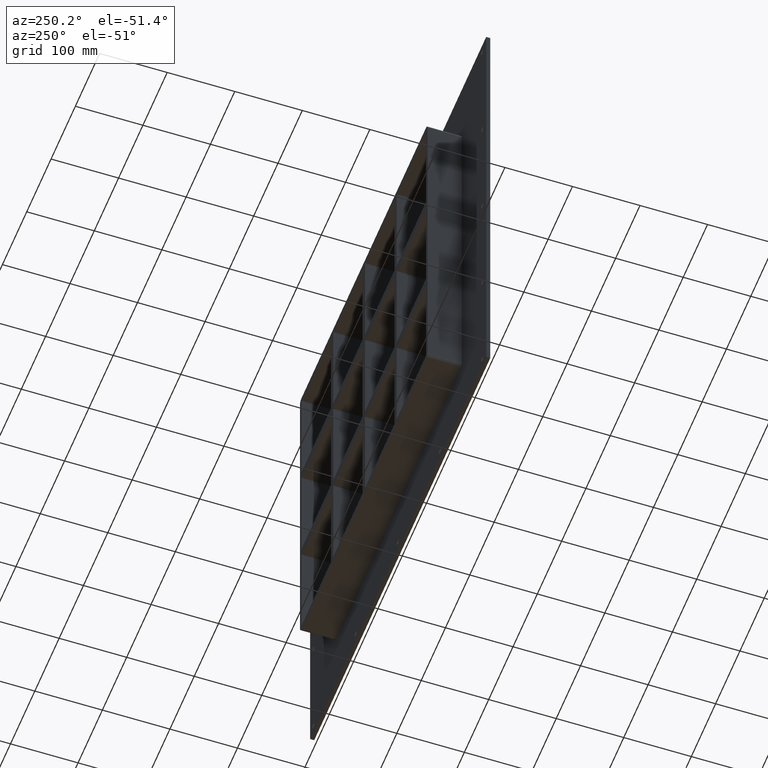
[diagram: clean part render]
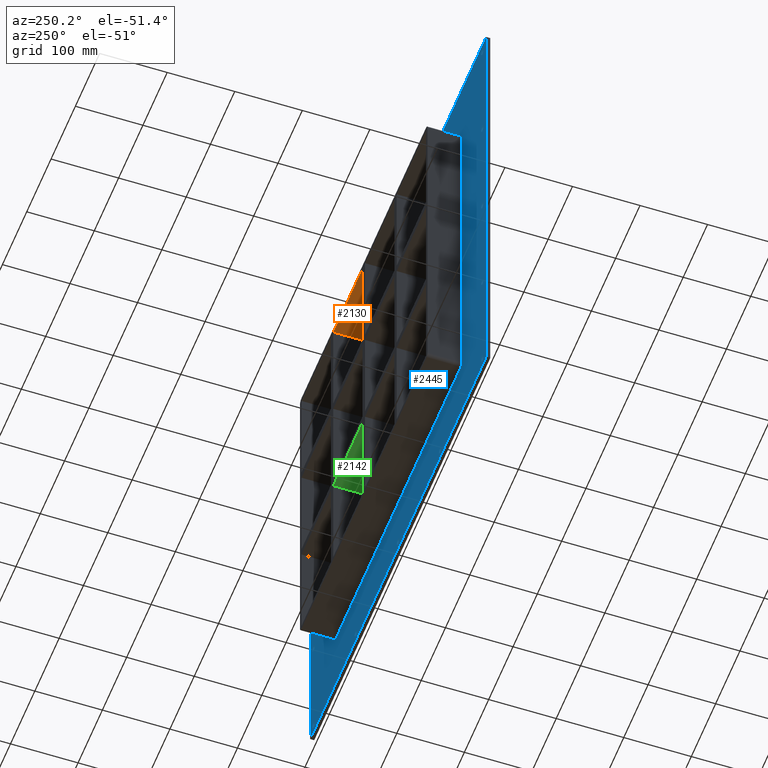
[diagram: same view with three faces highlighted in distinct colors, each labeled with its STEP entity id]
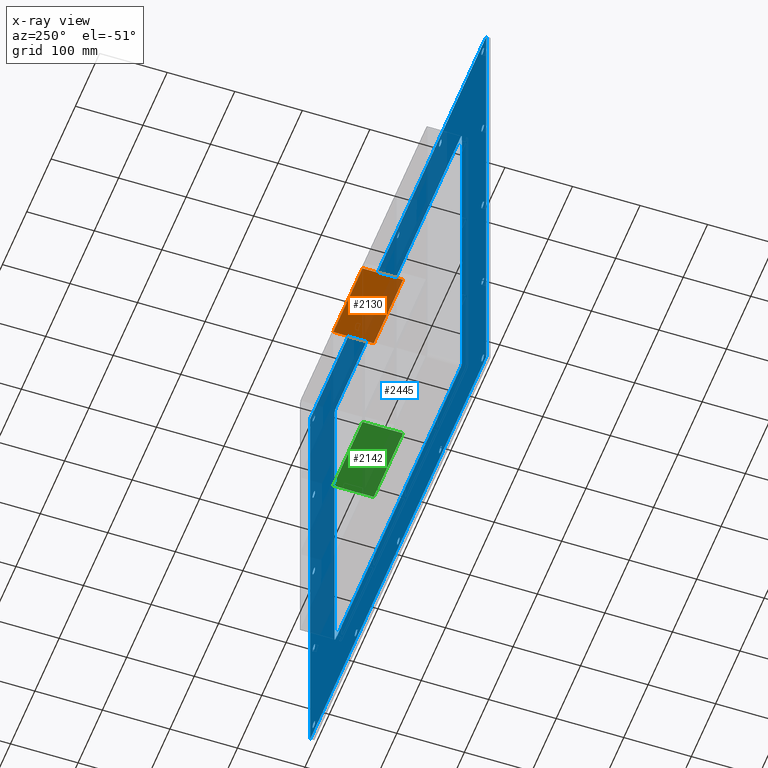
[diagram: x-ray of the same camera — body ghosted, the three highlighted faces saturated]
A machine part, auxiliary view with three faces highlighted in distinct colors.
The next image is the same camera in x-ray (body ghosted, the three faces saturated) — at least one of them is partly hidden behind the body in this view.
Their STEP definitions:

[orange] entity #2130 — the highlighted planar face has unit normal (0, 0, 1).
#935=CARTESIAN_POINT('',(125.49999999999862,-3.0,251.25));
#936=VERTEX_POINT('',#935);
#943=CARTESIAN_POINT('',(125.49999999999862,57.0,251.25));
#944=VERTEX_POINT('',#943);
#945=CARTESIAN_POINT('',(125.49999999999862,57.000000000000007,251.25));
#946=DIRECTION('',(0.0,-1.0,0.0));
#947=VECTOR('',#946,60.000000000000007);
#948=LINE('',#945,#947);
#949=EDGE_CURVE('',#944,#936,#948,.T.);
#1028=CARTESIAN_POINT('',(5.000000000007283,57.0,251.25));
#1029=VERTEX_POINT('',#1028);
#1036=CARTESIAN_POINT('',(5.000000000007283,-3.0,251.25));
#1037=VERTEX_POINT('',#1036);
#1038=CARTESIAN_POINT('',(5.000000000007283,-3.0,251.25));
#1039=DIRECTION('',(0.0,1.0,0.0));
#1040=VECTOR('',#1039,60.000000000000007);
#1041=LINE('',#1038,#1040);
#1042=EDGE_CURVE('',#1037,#1029,#1041,.T.);
#1251=CARTESIAN_POINT('',(125.49999999999864,57.0,251.25));
#1252=DIRECTION('',(-1.0,0.0,0.0));
#1253=VECTOR('',#1252,120.49999999999136);
#1254=LINE('',#1251,#1253);
#1255=EDGE_CURVE('',#944,#1029,#1254,.T.);
#1901=CARTESIAN_POINT('',(5.000000000007276,-3.0,251.25));
#1902=DIRECTION('',(1.0,0.0,0.0));
#1903=VECTOR('',#1902,120.49999999999136);
#1904=LINE('',#1901,#1903);
#1905=EDGE_CURVE('',#1037,#936,#1904,.T.);
#2119=CARTESIAN_POINT('',(-256.0,0.0,251.25));
#2120=DIRECTION('',(0.0,0.0,1.0));
#2121=DIRECTION('',(1.0,0.0,0.0));
#2122=AXIS2_PLACEMENT_3D('',#2119,#2120,#2121);
#2123=PLANE('',#2122);
#2124=ORIENTED_EDGE('',*,*,#949,.T.);
#2125=ORIENTED_EDGE('',*,*,#1905,.F.);
#2126=ORIENTED_EDGE('',*,*,#1042,.T.);
#2127=ORIENTED_EDGE('',*,*,#1255,.F.);
#2128=EDGE_LOOP('',(#2124,#2125,#2126,#2127));
#2129=FACE_OUTER_BOUND('',#2128,.T.);
#2130=ADVANCED_FACE('',(#2129),#2123,.F.);

[blue] entity #2445 — the highlighted planar face has unit normal (0, 1, 0).
#73=CARTESIAN_POINT('',(-352.0,5.999999999999943,-342.24999999999994));
#74=VERTEX_POINT('',#73);
#75=CARTESIAN_POINT('',(-347.0,5.999999999999943,-342.24999999999994));
#76=DIRECTION('',(0.0,-1.0,0.0));
#77=DIRECTION('',(1.0,0.0,0.0));
#78=AXIS2_PLACEMENT_3D('',#75,#76,#77);
#79=CIRCLE('',#78,5.0);
#80=EDGE_CURVE('',#74,#74,#79,.T.);
#101=CARTESIAN_POINT('',(342.0,5.999999999999943,-171.14999999999995));
#102=VERTEX_POINT('',#101);
#103=CARTESIAN_POINT('',(347.0,5.999999999999943,-171.14999999999995));
#104=DIRECTION('',(0.0,-1.0,0.0));
#105=DIRECTION('',(1.0,0.0,0.0));
#106=AXIS2_PLACEMENT_3D('',#103,#104,#105);
#107=CIRCLE('',#106,5.0);
#108=EDGE_CURVE('',#102,#102,#107,.T.);
#129=CARTESIAN_POINT('',(-352.0,5.999999999999943,-171.14999999999995));
#130=VERTEX_POINT('',#129);
#131=CARTESIAN_POINT('',(-347.0,5.999999999999943,-171.14999999999995));
#132=DIRECTION('',(0.0,-1.0,0.0));
#133=DIRECTION('',(1.0,0.0,0.0));
#134=AXIS2_PLACEMENT_3D('',#131,#132,#133);
#135=CIRCLE('',#134,5.0);
#136=EDGE_CURVE('',#130,#130,#135,.T.);
#157=CARTESIAN_POINT('',(342.0,5.999999999999943,-0.049999999999955));
#158=VERTEX_POINT('',#157);
#159=CARTESIAN_POINT('',(347.0,5.999999999999943,-0.049999999999955));
#160=DIRECTION('',(0.0,-1.0,0.0));
#161=DIRECTION('',(1.0,0.0,0.0));
#162=AXIS2_PLACEMENT_3D('',#159,#160,#161);
#163=CIRCLE('',#162,5.0);
#164=EDGE_CURVE('',#158,#158,#163,.T.);
#185=CARTESIAN_POINT('',(-352.0,5.999999999999943,-0.049999999999955));
#186=VERTEX_POINT('',#185);
#187=CARTESIAN_POINT('',(-347.0,5.999999999999943,-0.049999999999955));
#188=DIRECTION('',(0.0,-1.0,0.0));
#189=DIRECTION('',(1.0,0.0,0.0));
#190=AXIS2_PLACEMENT_3D('',#187,#188,#189);
#191=CIRCLE('',#190,5.0);
#192=EDGE_CURVE('',#186,#186,#191,.T.);
#213=CARTESIAN_POINT('',(342.0,5.999999999999943,171.05000000000004));
#214=VERTEX_POINT('',#213);
#215=CARTESIAN_POINT('',(347.0,5.999999999999943,171.05000000000004));
#216=DIRECTION('',(0.0,-1.0,0.0));
#217=DIRECTION('',(1.0,0.0,0.0));
#218=AXIS2_PLACEMENT_3D('',#215,#216,#217);
#219=CIRCLE('',#218,5.0);
#220=EDGE_CURVE('',#214,#214,#219,.T.);
#241=CARTESIAN_POINT('',(-352.0,5.999999999999943,171.05000000000004));
#242=VERTEX_POINT('',#241);
#243=CARTESIAN_POINT('',(-347.0,5.999999999999943,171.05000000000004));
#244=DIRECTION('',(0.0,-1.0,0.0));
#245=DIRECTION('',(1.0,0.0,0.0));
#246=AXIS2_PLACEMENT_3D('',#243,#244,#245);
#247=CIRCLE('',#246,5.0);
#248=EDGE_CURVE('',#242,#242,#247,.T.);
#269=CARTESIAN_POINT('',(-178.5,5.999999999999943,342.15000000000003));
#270=VERTEX_POINT('',#269);
#271=CARTESIAN_POINT('',(-173.5,5.999999999999943,342.15000000000003));
#272=DIRECTION('',(0.0,-1.0,0.0));
#273=DIRECTION('',(1.0,0.0,0.0));
#274=AXIS2_PLACEMENT_3D('',#271,#272,#273);
#275=CIRCLE('',#274,5.0);
#276=EDGE_CURVE('',#270,#270,#275,.T.);
#297=CARTESIAN_POINT('',(-178.5,5.999999999999943,-342.24999999999994));
#298=VERTEX_POINT('',#297);
#299=CARTESIAN_POINT('',(-173.5,5.999999999999943,-342.24999999999994));
#300=DIRECTION('',(0.0,-1.0,0.0));
#301=DIRECTION('',(1.0,0.0,0.0));
#302=AXIS2_PLACEMENT_3D('',#299,#300,#301);
#303=CIRCLE('',#302,5.0);
#304=EDGE_CURVE('',#298,#298,#303,.T.);
#325=CARTESIAN_POINT('',(-5.0,5.999999999999943,342.15000000000003));
#326=VERTEX_POINT('',#325);
#327=CARTESIAN_POINT('',(0.0,5.999999999999943,342.15000000000003));
#328=DIRECTION('',(0.0,-1.0,0.0));
#329=DIRECTION('',(1.0,0.0,0.0));
#330=AXIS2_PLACEMENT_3D('',#327,#328,#329);
#331=CIRCLE('',#330,5.0);
#332=EDGE_CURVE('',#326,#326,#331,.T.);
#353=CARTESIAN_POINT('',(-5.0,5.999999999999943,-342.24999999999994));
#354=VERTEX_POINT('',#353);
#355=CARTESIAN_POINT('',(0.0,5.999999999999943,-342.24999999999994));
#356=DIRECTION('',(0.0,-1.0,0.0));
#357=DIRECTION('',(1.0,0.0,0.0));
#358=AXIS2_PLACEMENT_3D('',#355,#356,#357);
#359=CIRCLE('',#358,5.0);
#360=EDGE_CURVE('',#354,#354,#359,.T.);
#381=CARTESIAN_POINT('',(168.5,5.999999999999943,342.15000000000003));
#382=VERTEX_POINT('',#381);
#383=CARTESIAN_POINT('',(173.5,5.999999999999943,342.15000000000003));
#384=DIRECTION('',(0.0,-1.0,0.0));
#385=DIRECTION('',(1.0,0.0,0.0));
#386=AXIS2_PLACEMENT_3D('',#383,#384,#385);
#387=CIRCLE('',#386,5.0);
#388=EDGE_CURVE('',#382,#382,#387,.T.);
#409=CARTESIAN_POINT('',(168.5,5.999999999999943,-342.24999999999994));
#410=VERTEX_POINT('',#409);
#411=CARTESIAN_POINT('',(173.5,5.999999999999943,-342.24999999999994));
#412=DIRECTION('',(0.0,-1.0,0.0));
#413=DIRECTION('',(1.0,0.0,0.0));
#414=AXIS2_PLACEMENT_3D('',#411,#412,#413);
#415=CIRCLE('',#414,5.0);
#416=EDGE_CURVE('',#410,#410,#415,.T.);
#437=CARTESIAN_POINT('',(342.0,5.999999999999943,-342.24999999999994));
#438=VERTEX_POINT('',#437);
#439=CARTESIAN_POINT('',(347.0,5.999999999999943,-342.24999999999994));
#440=DIRECTION('',(0.0,-1.0,0.0));
#441=DIRECTION('',(1.0,0.0,0.0));
#442=AXIS2_PLACEMENT_3D('',#439,#440,#441);
#443=CIRCLE('',#442,5.0);
#444=EDGE_CURVE('',#438,#438,#443,.T.);
#465=CARTESIAN_POINT('',(-352.0,5.999999999999943,342.15000000000003));
#466=VERTEX_POINT('',#465);
#467=CARTESIAN_POINT('',(-347.0,5.999999999999943,342.15000000000003));
#468=DIRECTION('',(0.0,-1.0,0.0));
#469=DIRECTION('',(1.0,0.0,0.0));
#470=AXIS2_PLACEMENT_3D('',#467,#468,#469);
#471=CIRCLE('',#470,5.0);
#472=EDGE_CURVE('',#466,#466,#471,.T.);
#493=CARTESIAN_POINT('',(342.0,5.999999999999943,342.15000000000003));
#494=VERTEX_POINT('',#493);
#495=CARTESIAN_POINT('',(347.0,5.999999999999943,342.15000000000003));
#496=DIRECTION('',(0.0,-1.0,0.0));
#497=DIRECTION('',(1.0,0.0,0.0));
#498=AXIS2_PLACEMENT_3D('',#495,#496,#497);
#499=CIRCLE('',#498,5.0);
#500=EDGE_CURVE('',#494,#494,#499,.T.);
#2288=CARTESIAN_POINT('',(-4.741891E-014,6.000000000000001,2.370946E-014));
#2289=DIRECTION('',(0.0,1.0,0.0));
#2290=DIRECTION('',(0.0,0.0,1.0));
#2291=AXIS2_PLACEMENT_3D('',#2288,#2289,#2290);
#2292=PLANE('',#2291);
#2293=CARTESIAN_POINT('',(-362.0,6.000000000000001,357.25));
#2294=VERTEX_POINT('',#2293);
#2295=CARTESIAN_POINT('',(362.0,6.000000000000001,357.25));
#2296=VERTEX_POINT('',#2295);
#2297=CARTESIAN_POINT('',(-362.0,6.000000000000001,357.25));
#2298=DIRECTION('',(1.0,0.0,0.0));
#2299=VECTOR('',#2298,724.0);
#2300=LINE('',#2297,#2299);
#2301=EDGE_CURVE('',#2294,#2296,#2300,.T.);
#2302=ORIENTED_EDGE('',*,*,#2301,.T.);
#2303=CARTESIAN_POINT('',(362.0,6.000000000000001,-357.24999999999989));
#2304=VERTEX_POINT('',#2303);
#2305=CARTESIAN_POINT('',(361.99999999999994,6.000000000000001,357.25));
#2306=DIRECTION('',(0.0,0.0,-1.0));
#2307=VECTOR('',#2306,714.49999999999989);
#2308=LINE('',#2305,#2307);
#2309=EDGE_CURVE('',#2296,#2304,#2308,.T.);
#2310=ORIENTED_EDGE('',*,*,#2309,.T.);
#2311=CARTESIAN_POINT('',(-362.0,6.000000000000001,-357.24999999999989));
#2312=VERTEX_POINT('',#2311);
#2313=CARTESIAN_POINT('',(361.99999999999994,6.000000000000001,-357.24999999999994));
#2314=DIRECTION('',(-1.0,0.0,0.0));
#2315=VECTOR('',#2314,724.0);
#2316=LINE('',#2313,#2315);
#2317=EDGE_CURVE('',#2304,#2312,#2316,.T.);
#2318=ORIENTED_EDGE('',*,*,#2317,.T.);
#2319=CARTESIAN_POINT('',(-362.0,6.000000000000001,-357.24999999999994));
#2320=DIRECTION('',(0.0,0.0,1.0));
#2321=VECTOR('',#2320,714.49999999999989);
#2322=LINE('',#2319,#2321);
#2323=EDGE_CURVE('',#2312,#2294,#2322,.T.);
#2324=ORIENTED_EDGE('',*,*,#2323,.T.);
#2325=EDGE_LOOP('',(#2302,#2310,#2318,#2324));
#2326=FACE_OUTER_BOUND('',#2325,.T.);
#2327=ORIENTED_EDGE('',*,*,#80,.T.);
#2328=EDGE_LOOP('',(#2327));
#2329=FACE_BOUND('',#2328,.T.);
#2330=ORIENTED_EDGE('',*,*,#108,.T.);
#2331=EDGE_LOOP('',(#2330));
#2332=FACE_BOUND('',#2331,.T.);
#2333=ORIENTED_EDGE('',*,*,#136,.T.);
#2334=EDGE_LOOP('',(#2333));
#2335=FACE_BOUND('',#2334,.T.);
#2336=ORIENTED_EDGE('',*,*,#164,.T.);
#2337=EDGE_LOOP('',(#2336));
#2338=FACE_BOUND('',#2337,.T.);
#2339=ORIENTED_EDGE('',*,*,#192,.T.);
#2340=EDGE_LOOP('',(#2339));
#2341=FACE_BOUND('',#2340,.T.);
#2342=ORIENTED_EDGE('',*,*,#220,.T.);
#2343=EDGE_LOOP('',(#2342));
#2344=FACE_BOUND('',#2343,.T.);
#2345=ORIENTED_EDGE('',*,*,#248,.T.);
#2346=EDGE_LOOP('',(#2345));
#2347=FACE_BOUND('',#2346,.T.);
#2348=ORIENTED_EDGE('',*,*,#276,.T.);
#2349=EDGE_LOOP('',(#2348));
#2350=FACE_BOUND('',#2349,.T.);
#2351=ORIENTED_EDGE('',*,*,#304,.T.);
#2352=EDGE_LOOP('',(#2351));
#2353=FACE_BOUND('',#2352,.T.);
#2354=ORIENTED_EDGE('',*,*,#332,.T.);
#2355=EDGE_LOOP('',(#2354));
#2356=FACE_BOUND('',#2355,.T.);
#2357=ORIENTED_EDGE('',*,*,#360,.T.);
#2358=EDGE_LOOP('',(#2357));
#2359=FACE_BOUND('',#2358,.T.);
#2360=ORIENTED_EDGE('',*,*,#388,.T.);
#2361=EDGE_LOOP('',(#2360));
#2362=FACE_BOUND('',#2361,.T.);
#2363=ORIENTED_EDGE('',*,*,#416,.T.);
#2364=EDGE_LOOP('',(#2363));
#2365=FACE_BOUND('',#2364,.T.);
#2366=ORIENTED_EDGE('',*,*,#444,.T.);
#2367=EDGE_LOOP('',(#2366));
#2368=FACE_BOUND('',#2367,.T.);
#2369=ORIENTED_EDGE('',*,*,#472,.T.);
#2370=EDGE_LOOP('',(#2369));
#2371=FACE_BOUND('',#2370,.T.);
#2372=ORIENTED_EDGE('',*,*,#500,.T.);
#2373=EDGE_LOOP('',(#2372));
#2374=FACE_BOUND('',#2373,.T.);
#2375=CARTESIAN_POINT('',(-256.0,6.000000000000001,-257.25000000000006));
#2376=VERTEX_POINT('',#2375);
#2377=CARTESIAN_POINT('',(-262.0,6.000000000000001,-251.25000000000003));
#2378=VERTEX_POINT('',#2377);
#2379=CARTESIAN_POINT('',(-256.0,6.000000000000001,-251.25000000000003));
#2380=DIRECTION('',(0.0,1.0,0.0));
#2381=DIRECTION('',(-0.707106781186548,0.0,-0.707106781186548));
#2382=AXIS2_PLACEMENT_3D('',#2379,#2380,#2381);
#2383=CIRCLE('',#2382,6.000000000000002);
#2384=EDGE_CURVE('',#2376,#2378,#2383,.T.);
#2385=ORIENTED_EDGE('',*,*,#2384,.F.);
#2386=CARTESIAN_POINT('',(256.0,6.000000000000001,-257.25000000000006));
#2387=VERTEX_POINT('',#2386);
#2388=CARTESIAN_POINT('',(256.0,6.000000000000001,-257.25000000000006));
#2389=DIRECTION('',(-1.0,0.0,0.0));
#2390=VECTOR('',#2389,512.0);
#2391=LINE('',#2388,#2390);
#2392=EDGE_CURVE('',#2387,#2376,#2391,.T.);
#2393=ORIENTED_EDGE('',*,*,#2392,.F.);
#2394=CARTESIAN_POINT('',(262.0,6.000000000000001,-251.25000000000003));
#2395=VERTEX_POINT('',#2394);
#2396=CARTESIAN_POINT('',(256.0,6.000000000000001,-251.25000000000003));
#2397=DIRECTION('',(0.0,1.0,0.0));
#2398=DIRECTION('',(0.707106781186548,0.0,-0.707106781186548));
#2399=AXIS2_PLACEMENT_3D('',#2396,#2397,#2398);
#2400=CIRCLE('',#2399,6.000000000000002);
#2401=EDGE_CURVE('',#2395,#2387,#2400,.T.);
#2402=ORIENTED_EDGE('',*,*,#2401,.F.);
#2403=CARTESIAN_POINT('',(262.0,6.000000000000001,251.24999999999997));
#2404=VERTEX_POINT('',#2403);
#2405=CARTESIAN_POINT('',(262.0,6.000000000000001,251.24999999999994));
#2406=DIRECTION('',(0.0,0.0,-1.0));
#2407=VECTOR('',#2406,502.5);
#2408=LINE('',#2405,#2407);
#2409=EDGE_CURVE('',#2404,#2395,#2408,.T.);
#2410=ORIENTED_EDGE('',*,*,#2409,.F.);
#2411=CARTESIAN_POINT('',(256.0,6.000000000000001,257.25));
#2412=VERTEX_POINT('',#2411);
#2413=CARTESIAN_POINT('',(256.0,6.000000000000001,251.24999999999997));
#2414=DIRECTION('',(0.0,1.0,0.0));
#2415=DIRECTION('',(0.707106781186548,0.0,0.707106781186548));
#2416=AXIS2_PLACEMENT_3D('',#2413,#2414,#2415);
#2417=CIRCLE('',#2416,6.000000000000002);
#2418=EDGE_CURVE('',#2412,#2404,#2417,.T.);
#2419=ORIENTED_EDGE('',*,*,#2418,.F.);
#2420=CARTESIAN_POINT('',(-256.0,6.000000000000001,257.25));
#2421=VERTEX_POINT('',#2420);
#2422=CARTESIAN_POINT('',(-256.0,6.000000000000001,257.25));
#2423=DIRECTION('',(1.0,0.0,0.0));
#2424=VECTOR('',#2423,512.0);
#2425=LINE('',#2422,#2424);
#2426=EDGE_CURVE('',#2421,#2412,#2425,.T.);
#2427=ORIENTED_EDGE('',*,*,#2426,.F.);
#2428=CARTESIAN_POINT('',(-262.0,6.000000000000001,251.24999999999997));
#2429=VERTEX_POINT('',#2428);
#2430=CARTESIAN_POINT('',(-256.0,6.000000000000001,251.24999999999997));
#2431=DIRECTION('',(0.0,1.0,0.0));
#2432=DIRECTION('',(-0.707106781186548,0.0,0.707106781186548));
#2433=AXIS2_PLACEMENT_3D('',#2430,#2431,#2432);
#2434=CIRCLE('',#2433,6.000000000000002);
#2435=EDGE_CURVE('',#2429,#2421,#2434,.T.);
#2436=ORIENTED_EDGE('',*,*,#2435,.F.);
#2437=CARTESIAN_POINT('',(-262.0,6.000000000000001,-251.25000000000003));
#2438=DIRECTION('',(0.0,0.0,1.0));
#2439=VECTOR('',#2438,502.5);
#2440=LINE('',#2437,#2439);
#2441=EDGE_CURVE('',#2378,#2429,#2440,.T.);
#2442=ORIENTED_EDGE('',*,*,#2441,.F.);
#2443=EDGE_LOOP('',(#2385,#2393,#2402,#2410,#2419,#2427,#2436,#2442));
#2444=FACE_BOUND('',#2443,.T.);
#2445=ADVANCED_FACE('',(#2326,#2329,#2332,#2335,#2338,#2341,#2344,#2347,#2350,#2353,#2356,#2359,#2362,#2365,#2368,#2371,#2374,#2444),#2292,.T.);

[green] entity #2142 — the highlighted planar face has unit normal (0, 0, -1).
#1410=CARTESIAN_POINT('',(125.49999999999868,57.0,-91.750000000009322));
#1411=VERTEX_POINT('',#1410);
#1418=CARTESIAN_POINT('',(5.000000000007283,57.0,-91.750000000009351));
#1419=VERTEX_POINT('',#1418);
#1420=CARTESIAN_POINT('',(125.49999999999866,57.0,-91.750000000009294));
#1421=DIRECTION('',(-1.0,0.0,0.0));
#1422=VECTOR('',#1421,120.49999999999139);
#1423=LINE('',#1420,#1422);
#1424=EDGE_CURVE('',#1411,#1419,#1423,.T.);
#1517=CARTESIAN_POINT('',(125.49999999999868,-3.0,-91.750000000009322));
#1518=VERTEX_POINT('',#1517);
#1519=CARTESIAN_POINT('',(125.49999999999868,57.0,-91.750000000009322));
#1520=DIRECTION('',(0.0,-1.0,0.0));
#1521=VECTOR('',#1520,60.0);
#1522=LINE('',#1519,#1521);
#1523=EDGE_CURVE('',#1411,#1518,#1522,.T.);
#1682=CARTESIAN_POINT('',(5.000000000007283,-3.0,-91.750000000009351));
#1683=VERTEX_POINT('',#1682);
#1684=CARTESIAN_POINT('',(5.000000000007283,-3.0,-91.750000000009337));
#1685=DIRECTION('',(0.0,1.0,0.0));
#1686=VECTOR('',#1685,60.0);
#1687=LINE('',#1684,#1686);
#1688=EDGE_CURVE('',#1683,#1419,#1687,.T.);
#1952=CARTESIAN_POINT('',(125.49999999999866,-3.0,-91.750000000009294));
#1953=DIRECTION('',(-1.0,0.0,0.0));
#1954=VECTOR('',#1953,120.49999999999139);
#1955=LINE('',#1952,#1954);
#1956=EDGE_CURVE('',#1518,#1683,#1955,.T.);
#2131=CARTESIAN_POINT('',(256.00000000000364,-3.0,-91.750000000009237));
#2132=DIRECTION('',(0.0,0.0,-1.0));
#2133=DIRECTION('',(-1.0,0.0,0.0));
#2134=AXIS2_PLACEMENT_3D('',#2131,#2132,#2133);
#2135=PLANE('',#2134);
#2136=ORIENTED_EDGE('',*,*,#1523,.T.);
#2137=ORIENTED_EDGE('',*,*,#1956,.T.);
#2138=ORIENTED_EDGE('',*,*,#1688,.T.);
#2139=ORIENTED_EDGE('',*,*,#1424,.F.);
#2140=EDGE_LOOP('',(#2136,#2137,#2138,#2139));
#2141=FACE_OUTER_BOUND('',#2140,.T.);
#2142=ADVANCED_FACE('',(#2141),#2135,.T.);